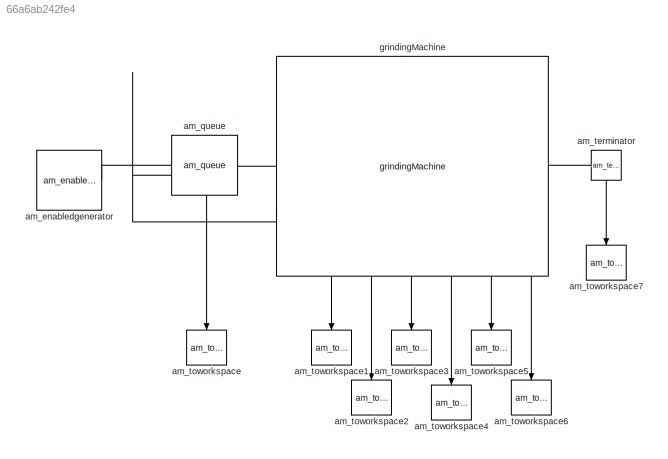
MODEL slx_66a6ab242fe4
KIND model
CONFIG AbsTol = auto
CONFIG EnableMultiTasking = off
CONFIG FixedStep = auto
CONFIG MaxStep = auto
CONFIG MinStep = auto
CONFIG RelTol = 1e-3
CONFIG SampleTimeConstraint = Unconstrained
CONFIG SolverName = VariableStepAuto
CONFIG StartTime = 0.0
CONFIG StopTime = 10.0
BLOCK [Reference] am_enabledgenerator  REF=StdLib/am_enabledgenerator
  SourceBlock = StdLib/am_enabledgenerator
  SourceType = EnabledGenerator
BLOCK [Reference] am_queue  REF=StdLib/am_queue
  SourceBlock = StdLib/am_queue
  SourceType = Queue
BLOCK [Reference] am_terminator  REF=StdLib/am_terminator
  SourceBlock = StdLib/am_terminator
  SourceType = Terminator
BLOCK [Reference] am_toworkspace  REF=StdLib/am_toworkspace
  NameLocation = left
  SourceBlock = StdLib/am_toworkspace
  SourceType = ToWorkspace
BLOCK [Reference] am_toworkspace1  REF=StdLib/am_toworkspace
  NameLocation = left
  SourceBlock = StdLib/am_toworkspace
  SourceType = ToWorkspace
BLOCK [Reference] am_toworkspace2  REF=StdLib/am_toworkspace
  NameLocation = left
  SourceBlock = StdLib/am_toworkspace
  SourceType = ToWorkspace
BLOCK [Reference] am_toworkspace3  REF=StdLib/am_toworkspace
  NameLocation = left
  SourceBlock = StdLib/am_toworkspace
  SourceType = ToWorkspace
BLOCK [Reference] am_toworkspace4  REF=StdLib/am_toworkspace
  NameLocation = left
  SourceBlock = StdLib/am_toworkspace
  SourceType = ToWorkspace
BLOCK [Reference] am_toworkspace5  REF=StdLib/am_toworkspace
  NameLocation = left
  SourceBlock = StdLib/am_toworkspace
  SourceType = ToWorkspace
BLOCK [Reference] am_toworkspace6  REF=StdLib/am_toworkspace
  NameLocation = left
  SourceBlock = StdLib/am_toworkspace
  SourceType = ToWorkspace
BLOCK [Reference] am_toworkspace7  REF=StdLib/am_toworkspace
  NameLocation = left
  SourceBlock = StdLib/am_toworkspace
  SourceType = ToWorkspace
BLOCK [Reference] grindingMachine  REF=ProductionLinePLib/grindingMachine
  LibrarySourceBlock = ProductionLineLib_CM/grinding
  SourceBlock = ProductionLinePLib/grindingMachine
LINE am_enabledgenerator:1 -> am_queue:1
LINE am_queue:1 -> grindingMachine:1
LINE am_queue:2 -> am_toworkspace:1
LINE am_terminator:1 -> am_toworkspace7:1
LINE grindingMachine:1 -> am_terminator:1
LINE grindingMachine:2 -> am_queue:2
LINE grindingMachine:3 -> am_toworkspace1:1
LINE grindingMachine:4 -> am_toworkspace2:1
LINE grindingMachine:5 -> am_toworkspace3:1
LINE grindingMachine:6 -> am_toworkspace4:1
LINE grindingMachine:7 -> am_toworkspace5:1
LINE grindingMachine:8 -> am_toworkspace6:1
